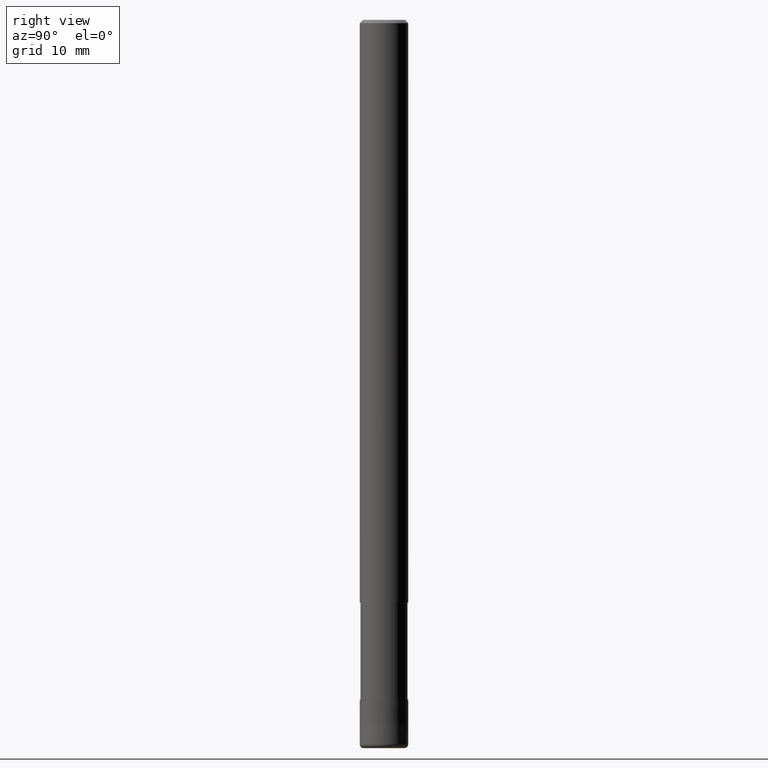
[diagram: clean part render]
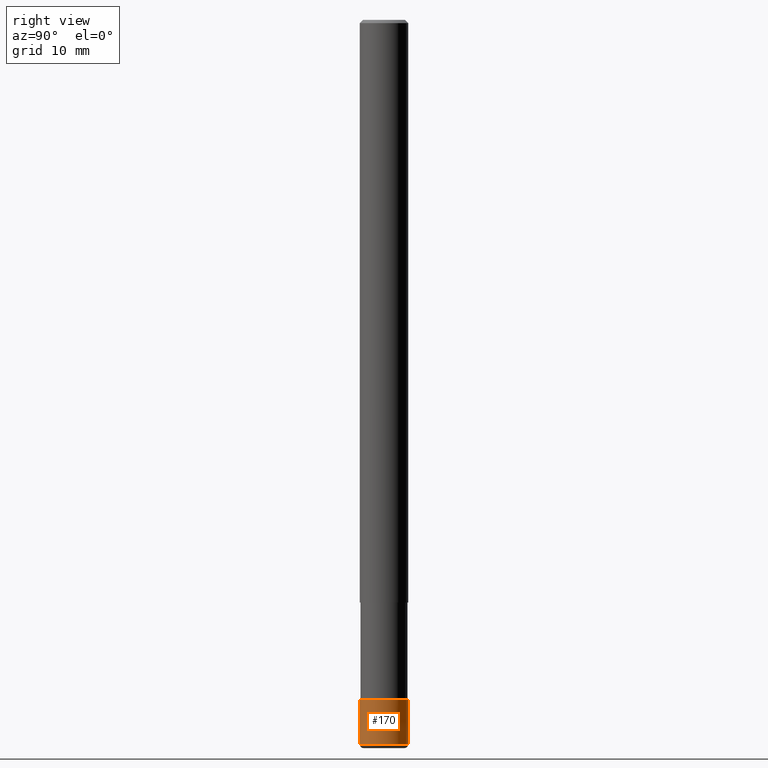
[diagram: same view with one face highlighted and labeled with its STEP entity id]
A machine part, right view. The second image highlights one B-rep face of the part: STEP entity #170.
In plain terms, the highlighted conical surface has half-angle 0.001 deg.
Its self-contained STEP definition (entity closure, byte-faithful):
#96=VERTEX_POINT('',#233);
#102=EDGE_CURVE('',#96,#114,#239,.T.);
#104=VERTEX_POINT('',#241);
#114=VERTEX_POINT('',#251);
#160=EDGE_CURVE('',#114,#182,#304,.T.);
#162=EDGE_CURVE('',#104,#96,#306,.T.);
#170=ADVANCED_FACE('',(#316),#317,.T.);
#182=VERTEX_POINT('',#331);
#194=EDGE_CURVE('',#104,#182,#345,.T.);
#233=CARTESIAN_POINT('',(0.0,3.0,-89.5));
#239=CIRCLE('',#391,3.0);
#241=CARTESIAN_POINT('',(0.0,2.9999,-84.0));
#251=CARTESIAN_POINT('',(3.67381906146713E-016,-3.0,-89.5));
#304=LINE('',#469,#470);
#306=LINE('',#473,#474);
#316=FACE_OUTER_BOUND('',#485,.T.);
#317=CONICAL_SURFACE('',#486,2.99995,1.8181818179853E-005);
#331=CARTESIAN_POINT('',(3.67369660083175E-016,-2.9999,-84.0));
#345=CIRCLE('',#520,2.9999);
#391=AXIS2_PLACEMENT_3D('',#548,#549,#550);
#469=CARTESIAN_POINT('',(3.67375783114944E-016,-2.99995,-86.75));
#470=VECTOR('',#626,1.0);
#473=CARTESIAN_POINT('',(-3.67375783114944E-016,2.99995,-86.75));
#474=VECTOR('',#627,1.0);
#485=EDGE_LOOP('',(#646,#647,#648,#649));
#486=AXIS2_PLACEMENT_3D('',#650,#651,#652);
#520=AXIS2_PLACEMENT_3D('',#691,#692,#693);
#548=CARTESIAN_POINT('',(0.0,0.0,-89.5));
#549=DIRECTION('',(0.0,0.0,-1.0));
#550=DIRECTION('',(0.0,1.0,0.0));
#626=DIRECTION('',(-2.22655700658645E-021,1.81818181788513E-005,0.999999999834711));
#627=DIRECTION('',(-2.22655700658645E-021,1.81818181788513E-005,-0.999999999834711));
#646=ORIENTED_EDGE('',*,*,#162,.F.);
#647=ORIENTED_EDGE('',*,*,#194,.T.);
#648=ORIENTED_EDGE('',*,*,#160,.F.);
#649=ORIENTED_EDGE('',*,*,#102,.F.);
#650=CARTESIAN_POINT('',(0.0,0.0,-86.75));
#651=DIRECTION('',(0.0,-0.0,-1.0));
#652=DIRECTION('',(0.0,1.0,0.0));
#691=CARTESIAN_POINT('',(0.0,0.0,-84.0));
#692=DIRECTION('',(0.0,0.0,-1.0));
#693=DIRECTION('',(0.0,1.0,0.0));